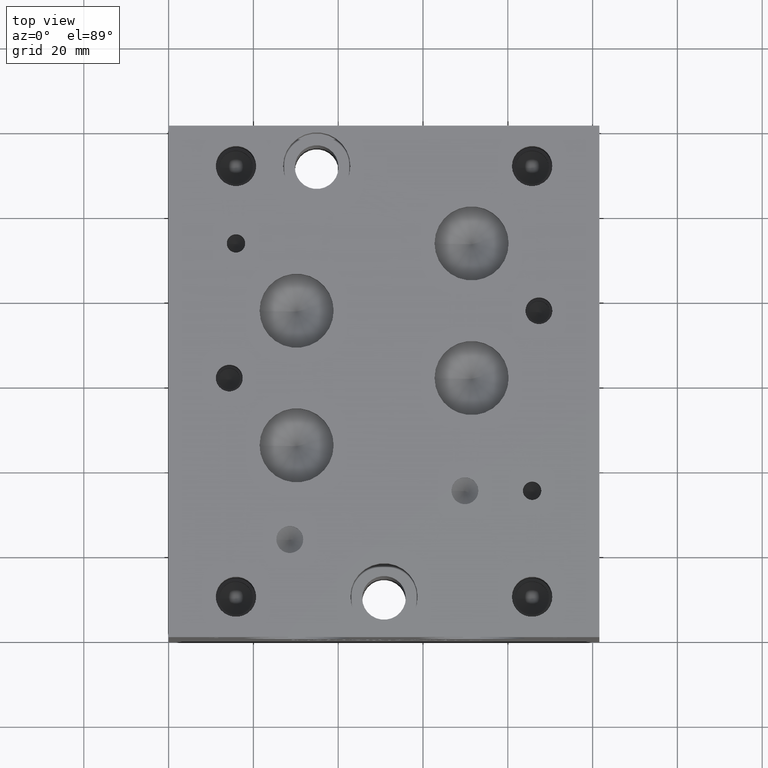
[diagram: clean part render]
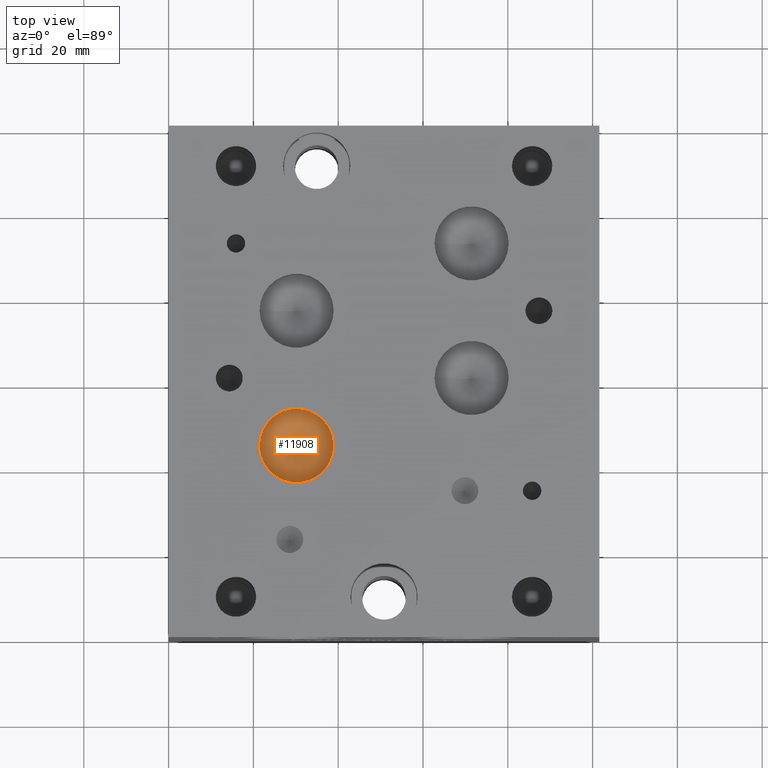
[diagram: same view with one face highlighted and labeled with its STEP entity id]
A machine part, top view. The second image highlights one B-rep face of the part: STEP entity #11908.
In plain terms, the highlighted conical surface has half-angle 60 deg.
Its self-contained STEP definition (entity closure, byte-faithful):
#62=CONICAL_SURFACE('',#12595,4.3688,1.0471975511966);
#341=CIRCLE('',#12596,8.7376);
#342=CIRCLE('',#12597,8.7376);
#1485=FACE_OUTER_BOUND('',#2156,.T.);
#2156=EDGE_LOOP('',(#10355,#10356,#10357,#10358));
#3292=LINE('',#20465,#4397);
#4397=VECTOR('',#15048,4.3688);
#5492=VERTEX_POINT('',#20461);
#5493=VERTEX_POINT('',#20462);
#5494=VERTEX_POINT('',#20464);
#7137=EDGE_CURVE('',#5492,#5493,#341,.T.);
#7138=EDGE_CURVE('',#5493,#5494,#3292,.T.);
#7139=EDGE_CURVE('',#5493,#5492,#342,.T.);
#10355=ORIENTED_EDGE('',*,*,#7137,.T.);
#10356=ORIENTED_EDGE('',*,*,#7138,.T.);
#10357=ORIENTED_EDGE('',*,*,#7138,.F.);
#10358=ORIENTED_EDGE('',*,*,#7139,.T.);
#11908=ADVANCED_FACE('',(#1485),#62,.F.);
#12595=AXIS2_PLACEMENT_3D('',#20460,#15044,#15045);
#12596=AXIS2_PLACEMENT_3D('',#20463,#15046,#15047);
#12597=AXIS2_PLACEMENT_3D('',#20466,#15049,#15050);
#15044=DIRECTION('center_axis',(0.,0.,1.));
#15045=DIRECTION('ref_axis',(1.,0.,0.));
#15046=DIRECTION('center_axis',(0.,0.,1.));
#15047=DIRECTION('ref_axis',(1.,0.,0.));
#15048=DIRECTION('',(0.866025403784439,1.06057523872491E-16,-0.5));
#15049=DIRECTION('center_axis',(0.,0.,1.));
#15050=DIRECTION('ref_axis',(1.,0.,0.));
#20460=CARTESIAN_POINT('Origin',(30.1752,45.2374,62.2830121439644));
#20461=CARTESIAN_POINT('',(38.9128,45.2374,64.80534));
#20462=CARTESIAN_POINT('',(21.4376,45.2374,64.80534));
#20463=CARTESIAN_POINT('Origin',(30.1752,45.2374,64.80534));
#20464=CARTESIAN_POINT('',(30.1752,45.2374,59.7606842879287));
#20465=CARTESIAN_POINT('',(25.8064,45.2374,62.2830121439644));
#20466=CARTESIAN_POINT('Origin',(30.1752,45.2374,64.80534));